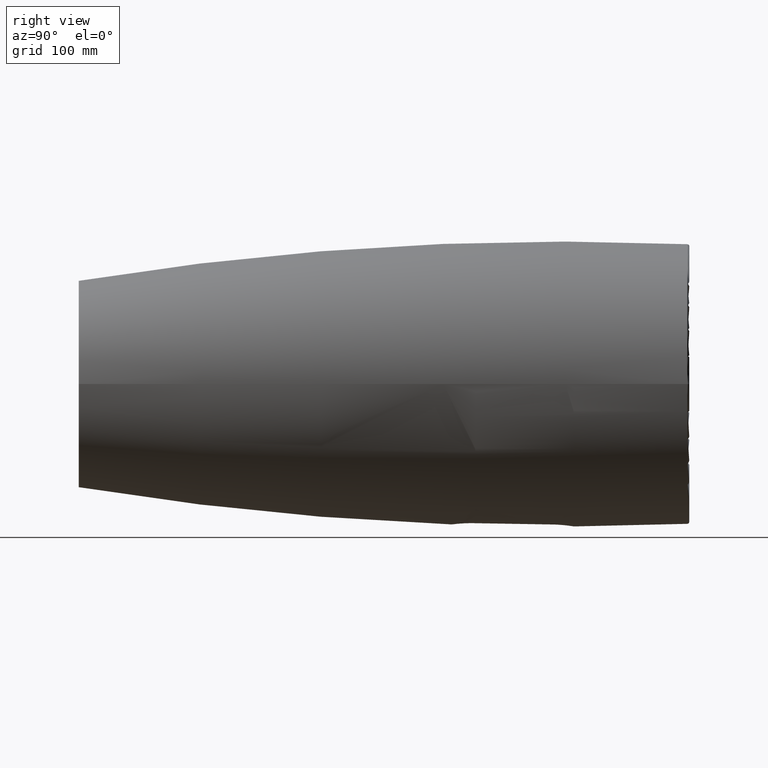
[diagram: clean part render]
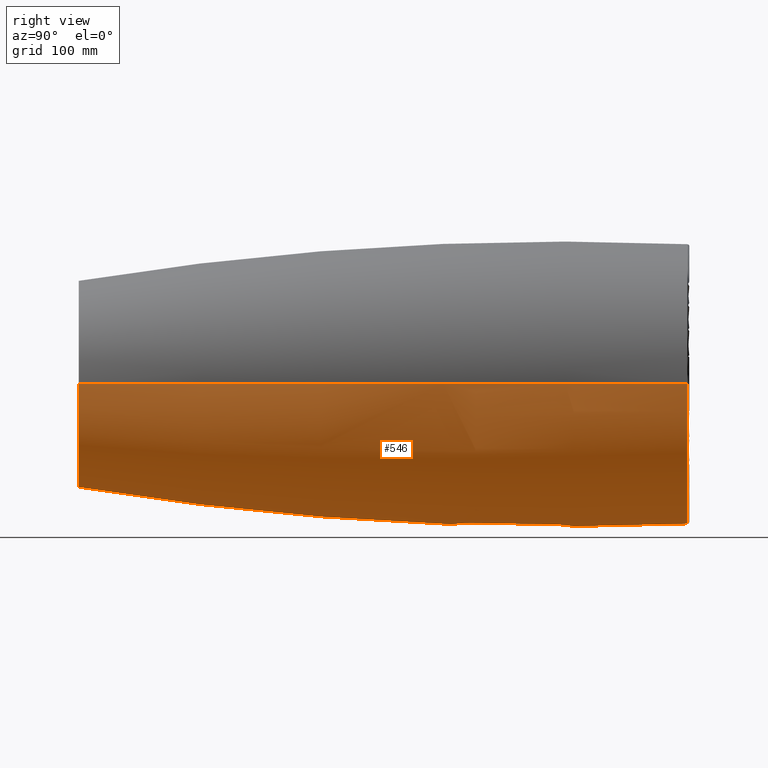
[diagram: same view with one face highlighted and labeled with its STEP entity id]
A machine part, right view. The second image highlights one B-rep face of the part: STEP entity #546.
In plain terms, the highlighted toroidal blend (fillet) surface has major radius 4200.2 mm and minor (blend) radius 4410.2 mm.
Its self-contained STEP definition (entity closure, byte-faithful):
#5 = CARTESIAN_POINT ( 'NONE',  ( -9.068492214503715232, 501.1179024859706601, -206.8704703654524053 ) ) ;
#14 = CARTESIAN_POINT ( 'NONE',  ( -33.82636332218643815, 654.0608404361877319, -207.2505446115492020 ) ) ;
#15 = CARTESIAN_POINT ( 'NONE',  ( 17.50513880578944281, 504.6866228409696760, -206.4457192061990725 ) ) ;
#18 = DIRECTION ( 'NONE',  ( 0.000000000000000000, -0.000000000000000000, -1.000000000000000000 ) ) ;
#21 = CARTESIAN_POINT ( 'NONE',  ( 23.13249471735168328, 508.6355023025968194, -206.0374008160337667 ) ) ;
#23 = CARTESIAN_POINT ( 'NONE',  ( 35.00000000000001421, 645.0000000000000000, -207.0287420584877225 ) ) ;
#26 = CARTESIAN_POINT ( 'NONE',  ( -7.411499894298145819, 679.2111319546037294, -209.8371401805706853 ) ) ;
#27 = CARTESIAN_POINT ( 'NONE',  ( 4.581674952057138483, 500.2249268317227120, -206.9858564886104659 ) ) ;
#39 = CARTESIAN_POINT ( 'NONE',  ( 33.82780353425916076, 525.9445019892123128, -205.1241690423084947 ) ) ;
#42 = EDGE_CURVE ( 'NONE', #287, #400, #499, .T. ) ;
#49 = CARTESIAN_POINT ( 'NONE',  ( 30.30159954123420007, 662.5537128875573671, -207.8031701084568965 ) ) ;
#51 = AXIS2_PLACEMENT_3D ( 'NONE', #267, #563, #261 ) ;
#52 = B_SPLINE_CURVE_WITH_KNOTS ( 'NONE', 3,
 ( #334, #960, #247, #411 ),
 .UNSPECIFIED., .F., .F.,
 ( 4, 4 ),
 ( 0.4357071529583723679, 0.5459115682155204485 ),
 .UNSPECIFIED. ) ;
#59 = CARTESIAN_POINT ( 'NONE',  ( 26.36561549396621018, 668.1336782908838359, -208.3410777724477612 ) ) ;
#61 = CARTESIAN_POINT ( 'NONE',  ( 31.11600750922302439, 661.0350871344687675, -207.6820070019978459 ) ) ;
#64 = CARTESIAN_POINT ( 'NONE',  ( -34.77139922197351751, 530.9646799197255405, -205.1204607162013360 ) ) ;
#70 = CARTESIAN_POINT ( 'NONE',  ( 8.880048061353697261E-14, -49.99999999999993605, 0.000000000000000000 ) ) ;
#84 = EDGE_CURVE ( 'NONE', #622, #682, #838, .T. ) ;
#97 = CARTESIAN_POINT ( 'NONE',  ( -33.14435331607531765, 656.2598890147164639, -207.3639790470734852 ) ) ;
#99 = AXIS2_PLACEMENT_3D ( 'NONE', #409, #191, #959 ) ;
#104 = CARTESIAN_POINT ( 'NONE',  ( -18.98951431697487280, 674.4062757330138993, -209.1232870153775139 ) ) ;
#110 = CARTESIAN_POINT ( 'NONE',  ( 12.35844977212526707, 502.2346759313891766, -206.7312647818859546 ) ) ;
#113 = CARTESIAN_POINT ( 'NONE',  ( 31.45074259986675003, 519.4721872709633317, -205.2968301615894688 ) ) ;
#133 = CARTESIAN_POINT ( 'NONE',  ( 34.94266056010005883, 647.3127221291526894, -207.0471497939622907 ) ) ;
#135 = TOROIDAL_SURFACE ( 'NONE', #51, -4200.202065928870979, 4410.202065928870979 ) ;
#139 = ORIENTED_EDGE ( 'NONE', *, *, #42, .F. ) ;
#140 = CARTESIAN_POINT ( 'NONE',  ( 4.563052901036033226, 679.7060502240622100, -209.9164739181522066 ) ) ;
#142 = CARTESIAN_POINT ( 'NONE',  ( -23.90437165564723543, 509.4283305542919038, -205.9708236304986428 ) ) ;
#144 = CARTESIAN_POINT ( 'NONE',  ( 24.32717501564976459, 670.1698351749778340, -208.5793540859521045 ) ) ;
#145 = CARTESIAN_POINT ( 'NONE',  ( -33.86824845854840760, 525.8794165442877784, -205.1161085064845224 ) ) ;
#154 = CARTESIAN_POINT ( 'NONE',  ( -31.37769123256364878, 519.4831288756500953, -205.3061493508864430 ) ) ;
#181 = CARTESIAN_POINT ( 'NONE',  ( -25.55477332640803922, 668.9426723293047417, -208.4358006988637726 ) ) ;
#190 = CARTESIAN_POINT ( 'NONE',  ( 34.77293530299782987, 530.4118563842274625, -205.1044746086818691 ) ) ;
#191 = DIRECTION ( 'NONE',  ( -1.246832498358330099E-16, 1.000000000000000000, -0.000000000000000000 ) ) ;
#195 = CARTESIAN_POINT ( 'NONE',  ( -32.54767448507710270, 657.8832259865564538, -207.4604079199373814 ) ) ;
#199 = CARTESIAN_POINT ( 'NONE',  ( -34.77235219159226176, 649.5928340172955586, -207.0839169727051683 ) ) ;
#213 = CARTESIAN_POINT ( 'NONE',  ( 23.05875907110197787, 671.3367148944543032, -208.7211447172008434 ) ) ;
#214 = EDGE_CURVE ( 'NONE', #685, #229, #625, .T. ) ;
#217 = CARTESIAN_POINT ( 'NONE',  ( 15.48888797049421662, 676.4071784271624210, -209.4075910753267351 ) ) ;
#224 = AXIS2_PLACEMENT_3D ( 'NONE', #808, #18, #569 ) ;
#225 = CARTESIAN_POINT ( 'NONE',  ( 35.00000000000001421, 645.0000000000000000, -207.0287420584877225 ) ) ;
#228 = CARTESIAN_POINT ( 'NONE',  ( -15.48112938779456549, 503.5890020191228018, -206.5697980876690281 ) ) ;
#229 = VERTEX_POINT ( 'NONE', #705 ) ;
#232 = CARTESIAN_POINT ( 'NONE',  ( -29.71279817365344655, 516.4676383999830023, -205.4549099774115746 ) ) ;
#233 = VERTEX_POINT ( 'NONE', #633 ) ;
#247 = CARTESIAN_POINT ( 'NONE',  ( -34.99999999999999289, 608.3420925411219287, -206.8836723306156387 ) ) ;
#255 = VERTEX_POINT ( 'NONE', #399 ) ;
#256 = CARTESIAN_POINT ( 'NONE',  ( -18.48414213500663905, 505.2572036305296024, -206.3824329531208832 ) ) ;
#258 = CARTESIAN_POINT ( 'NONE',  ( 35.00000000000001421, 535.0000000000198952, -205.2015341794556775 ) ) ;
#260 = CARTESIAN_POINT ( 'NONE',  ( 32.75659716190886428, 522.6574411757225107, -205.1935340704987993 ) ) ;
#261 = DIRECTION ( 'NONE',  ( -1.000000000000000000, -1.246832498358330099E-16, 0.000000000000000000 ) ) ;
#265 = CARTESIAN_POINT ( 'NONE',  ( -9.649313009111097017, 678.6484622188372668, -209.7482411128738136 ) ) ;
#266 = CARTESIAN_POINT ( 'NONE',  ( 17.00633936961762416, 504.4040619335442557, -206.4772898059973443 ) ) ;
#267 = CARTESIAN_POINT ( 'NONE',  ( 0.000000000000000000, 662.2085823914449065, 0.000000000000000000 ) ) ;
#275 = CIRCLE ( 'NONE', #532, 4410.202065928870979 ) ;
#278 = EDGE_CURVE ( 'NONE', #685, #255, #275, .T. ) ;
#280 = CARTESIAN_POINT ( 'NONE',  ( -17.51441706186404801, 675.3080197621088701, -209.2494298869508782 ) ) ;
#286 = CARTESIAN_POINT ( 'NONE',  ( 1.116442601307414906, 680.0008659523807637, -209.9642540850277896 ) ) ;
#287 = VERTEX_POINT ( 'NONE', #392 ) ;
#298 = CARTESIAN_POINT ( 'NONE',  ( 33.20247413712824880, 656.3069358209147595, -207.3570402392730614 ) ) ;
#301 = CARTESIAN_POINT ( 'NONE',  ( 35.00000000000001421, 645.0000000000000000, -207.0287420584877225 ) ) ;
#303 = CARTESIAN_POINT ( 'NONE',  ( -34.43051272978284061, 528.6859284785352884, -205.1085859392053123 ) ) ;
#308 = CARTESIAN_POINT ( 'NONE',  ( -27.80998669667611267, 513.6271235660969978, -205.6286712927498002 ) ) ;
#311 = CARTESIAN_POINT ( 'NONE',  ( 27.81128375157713606, 666.3710119819133979, -208.1526263189751944 ) ) ;
#312 = CARTESIAN_POINT ( 'NONE',  ( -34.99999999999998579, 533.8434025548161799, -205.1676772154961839 ) ) ;
#319 = CARTESIAN_POINT ( 'NONE',  ( -4200.202065928870979, 662.2085823914443381, -5.143764015811891808E-13 ) ) ;
#334 = CARTESIAN_POINT ( 'NONE',  ( -34.99999999999999289, 534.9999999999998863, -205.2015341794561039 ) ) ;
#338 = CARTESIAN_POINT ( 'NONE',  ( -28.45803992653864611, 665.3830784014968458, -208.0619844343865736 ) ) ;
#339 = CARTESIAN_POINT ( 'NONE',  ( 26.32031550222714600, 511.9009335802114720, -205.7626999606470690 ) ) ;
#343 = CARTESIAN_POINT ( 'NONE',  ( -34.99999999999999289, 645.0000000000000000, -207.0287420584857898 ) ) ;
#349 = EDGE_CURVE ( 'NONE', #229, #233, #557, .T. ) ;
#355 = CARTESIAN_POINT ( 'NONE',  ( -33.32572685709037330, 655.7110387311529394, -207.3340991966451554 ) ) ;
#361 = CARTESIAN_POINT ( 'NONE',  ( -7.977128110006434625, 679.0836912181987373, -209.8168745119660343 ) ) ;
#362 = CARTESIAN_POINT ( 'NONE',  ( 33.32729122760878937, 524.2938221818377542, -205.1537686039686719 ) ) ;
#372 = CARTESIAN_POINT ( 'NONE',  ( 34.42959533624530621, 651.3190823974043724, -207.1448400152146121 ) ) ;
#373 = EDGE_CURVE ( 'NONE', #682, #287, #681, .T. ) ;
#376 = CARTESIAN_POINT ( 'NONE',  ( -1.116966182878525338, 499.9991768729919386, -207.0160586650337393 ) ) ;
#377 = EDGE_LOOP ( 'NONE', ( #868, #427, #988, #139 ) ) ;
#380 = CARTESIAN_POINT ( 'NONE',  ( 34.69927577540746455, 649.6143282724711980, -207.0952215394055997 ) ) ;
#384 = CARTESIAN_POINT ( 'NONE',  ( -2.262882050649794419, 500.0541369588972316, -207.0087673640074684 ) ) ;
#387 = CARTESIAN_POINT ( 'NONE',  ( -33.20422520773753661, 523.6979513114686142, -205.1570942709106760 ) ) ;
#392 = CARTESIAN_POINT ( 'NONE',  ( 35.00000000000001421, 535.0000000000198952, -205.2015341794556775 ) ) ;
#399 = CARTESIAN_POINT ( 'NONE',  ( 206.1215591921067301, 847.1257882539825914, 2.524261076998754550E-14 ) ) ;
#400 = VERTEX_POINT ( 'NONE', #886 ) ;
#408 = CARTESIAN_POINT ( 'NONE',  ( 18.98036586746788501, 505.5878111253295515, -206.3475372324176931 ) ) ;
#409 = CARTESIAN_POINT ( 'NONE',  ( -1.056223962992482816E-13, 847.1257882539825914, 0.000000000000000000 ) ) ;
#411 = CARTESIAN_POINT ( 'NONE',  ( -34.99999999999999289, 645.0000000000000000, -207.0287420584857898 ) ) ;
#417 = EDGE_LOOP ( 'NONE', ( #927, #458, #888, #1006 ) ) ;
#418 = CARTESIAN_POINT ( 'NONE',  ( -18.50088868499756956, 674.7161233134911527, -209.1662436523619419 ) ) ;
#419 = CARTESIAN_POINT ( 'NONE',  ( 7.968266169048556335, 500.9142371739706618, -206.8968767916101399 ) ) ;
#422 = CARTESIAN_POINT ( 'NONE',  ( -15.50266918220437162, 676.4002512048132303, -209.4065777069885144 ) ) ;
#423 = CARTESIAN_POINT ( 'NONE',  ( 28.78713279774086686, 515.0844776916823093, -205.5394386341428685 ) ) ;
#427 = ORIENTED_EDGE ( 'NONE', *, *, #84, .F. ) ;
#428 = CARTESIAN_POINT ( 'NONE',  ( -28.78765074655443712, 664.9147587540780933, -208.0169124256569546 ) ) ;
#449 = CARTESIAN_POINT ( 'NONE',  ( 14.43980305888286431, 676.9031216687808410, -209.4811422045873144 ) ) ;
#453 = CARTESIAN_POINT ( 'NONE',  ( 29.71266226825208889, 663.5325285698753532, -207.8882544134922057 ) ) ;
#457 = CARTESIAN_POINT ( 'NONE',  ( -34.52945654247436380, 529.2512505296739391, -205.1092677871307330 ) ) ;
#458 = ORIENTED_EDGE ( 'NONE', *, *, #214, .T. ) ;
#459 = DIRECTION ( 'NONE',  ( 1.000000000000000000, 0.000000000000000000, 1.224646799147353454E-16 ) ) ;
#481 = CARTESIAN_POINT ( 'NONE',  ( -2.313360101028824722, 679.9982372561416923, -209.9638264988666947 ) ) ;
#486 = CARTESIAN_POINT ( 'NONE',  ( -34.99999999999999289, 645.0000000000000000, -207.0287420584857898 ) ) ;
#488 = EDGE_CURVE ( 'NONE', #400, #622, #52, .T. ) ;
#491 = CARTESIAN_POINT ( 'NONE',  ( 21.37195803694548957, 507.1874543512731179, -206.1789518788916666 ) ) ;
#496 = CARTESIAN_POINT ( 'NONE',  ( -27.77387843481654528, 666.3059052440883079, -208.1536488821281239 ) ) ;
#499 = B_SPLINE_CURVE_WITH_KNOTS ( 'NONE', 3,
 ( #581, #670, #190, #983, #39, #362, #571, #260, #973, #113, #821, #423, #664, #505, #842, #339, #967, #21, #491, #408, #728, #15, #266, #735, #647, #110, #962, #567, #653, #419, #740, #27, #782, #376, #384, #617, #944, #701, #786, #5, #688, #1014, #228, #609, #256, #545, #1001, #723, #872, #142, #775, #771, #308, #232, #692, #934, #154, #958, #536, #387, #145, #303, #457, #562, #64, #1009, #312, #833 ),
 .UNSPECIFIED., .F., .F.,
 ( 4, 2, 2, 2, 2, 2, 2, 2, 2, 2, 2, 2, 2, 2, 2, 2, 2, 2, 2, 2, 2, 2, 2, 2, 2, 2, 2, 2, 2, 2, 2, 2, 2, 4 ),
 ( 1.972296520537245286E-07, 0.006843580116678967852, 0.01026527156019242139, 0.01197611728194930211, 0.01368696300370618457, 0.02053034589073340910, 0.02224119161249028809, 0.02395203733424717055, 0.02737372877776093893, 0.03421711166478846877, 0.03592795738654534082, 0.03763880310830221287, 0.04106049455181610963, 0.04448218599532999945, 0.04619303171708699640, 0.04790387743884399335, 0.05474726032587184932, 0.05816895176938578771, 0.05987979749114274303, 0.06159064321289969834, 0.06843402609992749186, 0.07185571754344144413, 0.07527740898695539640, 0.07869910043046934867, 0.08040994615222644970, 0.08212079187398352298, 0.08896417476101227406, 0.09238586620452665654, 0.09409671192628371594, 0.09580755764804074759, 0.1026509405350683468, 0.1043617862568251564, 0.1060726319785819660, 0.1094943234220956130 ),
 .UNSPECIFIED. ) ;
#504 = CARTESIAN_POINT ( 'NONE',  ( -30.37436785714492515, 662.5391278317497381, -207.7960709087836904 ) ) ;
#505 = CARTESIAN_POINT ( 'NONE',  ( 27.77228396407881661, 513.6920007640582071, -205.6319378437462149 ) ) ;
#514 = EDGE_CURVE ( 'NONE', #255, #233, #636, .T. ) ;
#519 = CARTESIAN_POINT ( 'NONE',  ( 31.87067320420491967, 659.4773101162251123, -207.5668093719345109 ) ) ;
#523 = CARTESIAN_POINT ( 'NONE',  ( 11.25835678154443897, 678.2192375130564415, -209.6797479789172485 ) ) ;
#531 = CARTESIAN_POINT ( 'NONE',  ( 32.10391440060871560, 658.9523070874926134, -207.5304714718946286 ) ) ;
#532 = AXIS2_PLACEMENT_3D ( 'NONE', #319, #700, #459 ) ;
#535 = CARTESIAN_POINT ( 'NONE',  ( 3.988063789416337990, 679.7768480209971358, -209.9279179302147327 ) ) ;
#536 = CARTESIAN_POINT ( 'NONE',  ( -32.10535662380212329, 521.0509989310615993, -205.2446885223162099 ) ) ;
#545 = CARTESIAN_POINT ( 'NONE',  ( -20.37890539296409642, 506.5219793291822157, -206.2490341487877856 ) ) ;
#546 = ADVANCED_FACE ( 'NONE', ( #883, #729 ), #135, .T. ) ;
#550 = DIRECTION ( 'NONE',  ( -1.246832498358330099E-16, 1.000000000000000000, -0.000000000000000000 ) ) ;
#557 = CIRCLE ( 'NONE', #224, 4410.202065928870979 ) ;
#562 = CARTESIAN_POINT ( 'NONE',  ( -34.69985712441136627, 530.3900753654055507, -205.1151959540277971 ) ) ;
#563 = DIRECTION ( 'NONE',  ( -1.246832498358330099E-16, 1.000000000000000000, -0.000000000000000000 ) ) ;
#566 = CARTESIAN_POINT ( 'NONE',  ( -32.75498794567779726, 657.3468223459751698, -207.4271877767070578 ) ) ;
#567 = CARTESIAN_POINT ( 'NONE',  ( 9.640346758621360479, 501.3489691492549696, -206.8415877175599746 ) ) ;
#569 = DIRECTION ( 'NONE',  ( -1.000000000000000000, 0.000000000000000000, 0.000000000000000000 ) ) ;
#570 = CARTESIAN_POINT ( 'NONE',  ( -9.095691663666546134, 678.8023811750075538, -209.7724291962848611 ) ) ;
#571 = CARTESIAN_POINT ( 'NONE',  ( 33.14590936378137798, 523.7446853261974411, -205.1657374618602603 ) ) ;
#580 = CARTESIAN_POINT ( 'NONE',  ( -21.37904988927908079, 672.8069690818994104, -208.9051231881697959 ) ) ;
#581 = CARTESIAN_POINT ( 'NONE',  ( 35.00000000000001421, 535.0000000000198952, -205.2015341794556775 ) ) ;
#602 = CARTESIAN_POINT ( 'NONE',  ( 18.49171891088344211, 674.7380796707371928, -209.1686037686453687 ) ) ;
#607 = CARTESIAN_POINT ( 'NONE',  ( 34.52865214629566282, 650.7536028455236874, -207.1268868279768753 ) ) ;
#609 = CARTESIAN_POINT ( 'NONE',  ( -17.50488726892102065, 504.6702277789847244, -206.4470723695675360 ) ) ;
#612 = CARTESIAN_POINT ( 'NONE',  ( 33.86680069539673354, 654.1260730033751543, -207.2447306420648658 ) ) ;
#617 = CARTESIAN_POINT ( 'NONE',  ( -3.987098461234106939, 500.2230458410155052, -206.9865542927579440 ) ) ;
#622 = VERTEX_POINT ( 'NONE', #486 ) ;
#625 = CIRCLE ( 'NONE', #638, 152.1123985246397581 ) ;
#630 = CARTESIAN_POINT ( 'NONE',  ( 35.00000000000001421, 571.6402702528162081, -206.2741012291020013 ) ) ;
#633 = CARTESIAN_POINT ( 'NONE',  ( -206.1215591921068437, 847.1257882539825914, 0.000000000000000000 ) ) ;
#636 = CIRCLE ( 'NONE', #99, 206.1215591921062753 ) ;
#638 = AXIS2_PLACEMENT_3D ( 'NONE', #70, #550, #720 ) ;
#645 = CARTESIAN_POINT ( 'NONE',  ( -26.32314786298074694, 668.0958018734351072, -208.3411170432074471 ) ) ;
#647 = CARTESIAN_POINT ( 'NONE',  ( 14.46293628789093688, 503.1076621110393035, -206.6263788220259414 ) ) ;
#652 = CARTESIAN_POINT ( 'NONE',  ( -11.29354000309507811, 678.1476840693243275, -209.6701433368469338 ) ) ;
#653 = CARTESIAN_POINT ( 'NONE',  ( 9.086757494373964406, 501.1952173293249189, -206.8610557151176010 ) ) ;
#657 = CARTESIAN_POINT ( 'NONE',  ( -31.44925066254884172, 660.5307003087332305, -207.6338498675220592 ) ) ;
#664 = CARTESIAN_POINT ( 'NONE',  ( 28.45719026152833919, 514.6157190355044122, -205.5695971464277250 ) ) ;
#670 = CARTESIAN_POINT ( 'NONE',  ( 35.00000000000133582, 532.6868322987089641, -205.1338210474391417 ) ) ;
#681 = B_SPLINE_CURVE_WITH_KNOTS ( 'NONE', 3,
 ( #23, #903, #630, #258 ),
 .UNSPECIFIED., .F., .F.,
 ( 4, 4 ),
 ( 0.4347041275900007107, 0.5448342012560848380 ),
 .UNSPECIFIED. ) ;
#682 = VERTEX_POINT ( 'NONE', #225 ) ;
#683 = CARTESIAN_POINT ( 'NONE',  ( 23.90926462441530376, 670.5670879540590477, -208.6269649364846828 ) ) ;
#685 = VERTEX_POINT ( 'NONE', #760 ) ;
#686 = CARTESIAN_POINT ( 'NONE',  ( 31.37661556449357292, 660.5190307174311783, -207.6425954536059635 ) ) ;
#688 = CARTESIAN_POINT ( 'NONE',  ( -11.25099136878093020, 501.7783006286086334, -206.7861614772355381 ) ) ;
#692 = CARTESIAN_POINT ( 'NONE',  ( -30.30212166078786851, 517.4471412586880206, -205.4011971827473246 ) ) ;
#700 = DIRECTION ( 'NONE',  ( -1.224646799147353207E-16, -1.526929428187426516E-32, 1.000000000000000000 ) ) ;
#701 = CARTESIAN_POINT ( 'NONE',  ( -5.698772759026928370, 500.4622727378167610, -206.9552753897516766 ) ) ;
#705 = CARTESIAN_POINT ( 'NONE',  ( -152.1123985246396728, -49.99999999999995737, 0.000000000000000000 ) ) ;
#720 = DIRECTION ( 'NONE',  ( 1.000000000000000000, 1.368506572352135864E-16, 0.000000000000000000 ) ) ;
#723 = CARTESIAN_POINT ( 'NONE',  ( -22.61957854277019564, 508.2851972104859328, -206.0758949440526919 ) ) ;
#728 = CARTESIAN_POINT ( 'NONE',  ( 18.49157373016715056, 505.2780818186749343, -206.3808856257346918 ) ) ;
#729 = FACE_BOUND ( 'NONE', #377, .T. ) ;
#734 = CARTESIAN_POINT ( 'NONE',  ( -27.41829741927250197, 666.7616178402857940, -208.2003716324123843 ) ) ;
#735 = CARTESIAN_POINT ( 'NONE',  ( 15.49345950531604998, 503.5952116351479617, -206.5690814386324234 ) ) ;
#739 = CARTESIAN_POINT ( 'NONE',  ( -12.36754779353515232, 677.7618971490755939, -209.6107020538580912 ) ) ;
#740 = CARTESIAN_POINT ( 'NONE',  ( 7.403243728111116972, 500.7870920045699563, -206.9132197624109892 ) ) ;
#750 = CARTESIAN_POINT ( 'NONE',  ( -17.01560031660642380, 675.5907907341421605, -209.2897552544694406 ) ) ;
#755 = CARTESIAN_POINT ( 'NONE',  ( 17.51264011545318411, 675.3253020348474820, -209.2514260778800690 ) ) ;
#760 = CARTESIAN_POINT ( 'NONE',  ( 152.1123985246398433, -49.99999999999991473, 2.193550348318507100E-14 ) ) ;
#770 = CARTESIAN_POINT ( 'NONE',  ( 22.62534656713756931, 671.7099129910560578, -208.7678098069997077 ) ) ;
#771 = CARTESIAN_POINT ( 'NONE',  ( -26.36299084187735531, 511.8631456126007038, -205.7613597547364463 ) ) ;
#773 = CARTESIAN_POINT ( 'NONE',  ( 21.30095421583876814, 672.7951863923625524, -208.9060692441915137 ) ) ;
#775 = CARTESIAN_POINT ( 'NONE',  ( -24.32256088890978418, 509.8256953597063443, -205.9356776983533166 ) ) ;
#782 = CARTESIAN_POINT ( 'NONE',  ( 2.310436763950618477, 500.0016741250813652, -207.0157283688655241 ) ) ;
#786 = CARTESIAN_POINT ( 'NONE',  ( -6.263619031533896653, 500.5602815514551480, -206.9425271447975376 ) ) ;
#805 = CARTESIAN_POINT ( 'NONE',  ( -34.10402408320490508, 652.9509868345896848, -207.2026678668726447 ) ) ;
#808 = CARTESIAN_POINT ( 'NONE',  ( 4200.202065928870979, 662.2085823914454750, 0.000000000000000000 ) ) ;
#811 = CARTESIAN_POINT ( 'NONE',  ( 2.263033155935742613, 679.9458713611653593, -209.9552870661948418 ) ) ;
#821 = CARTESIAN_POINT ( 'NONE',  ( 30.37531496446331403, 517.4622425248957143, -205.3944161884030279 ) ) ;
#826 = CARTESIAN_POINT ( 'NONE',  ( -14.47211266807035557, 676.8881811672396225, -209.4789208002172529 ) ) ;
#833 = CARTESIAN_POINT ( 'NONE',  ( -34.99999999999999289, 534.9999999999998863, -205.2015341794561039 ) ) ;
#838 = B_SPLINE_CURVE_WITH_KNOTS ( 'NONE', 3,
 ( #343, #912, #199, #805, #14, #355, #97, #566, #195, #657, #504, #428, #338, #496, #734, #645, #181, #915, #580, #104, #418, #280, #750, #422, #826, #739, #652, #265, #570, #361, #26, #982, #481, #286, #811, #535, #140, #1007, #937, #861, #523, #449, #217, #755, #602, #921, #773, #770, #213, #683, #144, #59, #311, #453, #49, #61, #686, #519, #531, #298, #612, #372, #607, #380, #846, #133, #1003, #301 ),
 .UNSPECIFIED., .F., .F.,
 ( 4, 2, 2, 2, 2, 2, 2, 2, 2, 2, 2, 2, 2, 2, 2, 2, 2, 2, 2, 2, 2, 2, 2, 2, 2, 2, 2, 2, 2, 2, 2, 2, 2, 4 ),
 ( 1.971369481176360121E-07, 0.006849387360882564467, 0.01027398247284995111, 0.01198628002883349135, 0.01369857758481702811, 0.02054776780875147701, 0.02226006536473516817, 0.02397236292071885586, 0.02739695803268622776, 0.03424614825662072870, 0.03595844581260434353, 0.03767074336858795836, 0.04109533848055520883, 0.04451993359252245930, 0.04623223114850613658, 0.04794452870448982079, 0.05479371892842452296, 0.05821831404039189140, 0.05993061159637556173, 0.06164290915235925289, 0.06849209937629389955, 0.07191669448826124023, 0.07534128960022855315, 0.07876588471219587995, 0.08047818226817944620, 0.08219047982416299858, 0.08903967004809794361, 0.09246426516006525653, 0.09417656271604905871, 0.09588886027203287477, 0.1027380504959677782, 0.1044503480519515942, 0.1061626456079353825, 0.1095872407199033338 ),
 .UNSPECIFIED. ) ;
#842 = CARTESIAN_POINT ( 'NONE',  ( 27.41630444604599859, 513.2358616085458607, -205.6642107471635654 ) ) ;
#846 = CARTESIAN_POINT ( 'NONE',  ( 34.77093103077575620, 649.0394192552023469, -207.0814908621561301 ) ) ;
#861 = CARTESIAN_POINT ( 'NONE',  ( 9.074789752528559461, 678.8805574509941607, -209.7843482029363145 ) ) ;
#868 = ORIENTED_EDGE ( 'NONE', *, *, #373, .F. ) ;
#872 = CARTESIAN_POINT ( 'NONE',  ( -23.05327116363314133, 508.6584747755968010, -206.0408987054510419 ) ) ;
#883 = FACE_OUTER_BOUND ( 'NONE', #417, .T. ) ;
#886 = CARTESIAN_POINT ( 'NONE',  ( -34.99999999999999289, 534.9999999999998863, -205.2015341794561039 ) ) ;
#888 = ORIENTED_EDGE ( 'NONE', *, *, #349, .T. ) ;
#903 = CARTESIAN_POINT ( 'NONE',  ( 35.00000000000001421, 608.3069162691119800, -206.8835331243022893 ) ) ;
#912 = CARTESIAN_POINT ( 'NONE',  ( -34.99999999999999289, 647.3162195572389237, -207.0379082483800630 ) ) ;
#915 = CARTESIAN_POINT ( 'NONE',  ( -23.13800260008905596, 671.3595301135751470, -208.7184719012147411 ) ) ;
#921 = CARTESIAN_POINT ( 'NONE',  ( 20.38587722463515206, 673.4730233829203598, -208.9959274146287385 ) ) ;
#927 = ORIENTED_EDGE ( 'NONE', *, *, #278, .F. ) ;
#934 = CARTESIAN_POINT ( 'NONE',  ( -31.11696580523720002, 518.9667596581319913, -205.3289158031450086 ) ) ;
#937 = CARTESIAN_POINT ( 'NONE',  ( 6.267334212318973030, 679.4390515369003651, -209.8735353928301492 ) ) ;
#944 = CARTESIAN_POINT ( 'NONE',  ( -4.561209134833759116, 500.2937183405613268, -206.9772806227034607 ) ) ;
#958 = CARTESIAN_POINT ( 'NONE',  ( -31.87201979031422638, 520.5256381466537050, -205.2640256771656482 ) ) ;
#959 = DIRECTION ( 'NONE',  ( -1.000000000000000000, 0.000000000000000000, 0.000000000000000000 ) ) ;
#960 = CARTESIAN_POINT ( 'NONE',  ( -34.99999999999999289, 571.6754358341014495, -206.2751306277260142 ) ) ;
#962 = CARTESIAN_POINT ( 'NONE',  ( 11.28448705415146591, 501.8492382636285924, -206.7788564779444869 ) ) ;
#967 = CARTESIAN_POINT ( 'NONE',  ( 25.55131251413399340, 511.0535975253854986, -205.8306759590641946 ) ) ;
#973 = CARTESIAN_POINT ( 'NONE',  ( 32.54928703574972815, 522.1208385519934154, -205.2093114895866677 ) ) ;
#982 = CARTESIAN_POINT ( 'NONE',  ( -4.586695604341825216, 679.7745928546846699, -209.9271117505867039 ) ) ;
#983 = CARTESIAN_POINT ( 'NONE',  ( 34.10527311031432163, 527.0544119835450374, -205.1127099810959180 ) ) ;
#988 = ORIENTED_EDGE ( 'NONE', *, *, #488, .F. ) ;
#1001 = CARTESIAN_POINT ( 'NONE',  ( -21.29441155013297760, 507.1997819635471956, -206.1802707161912167 ) ) ;
#1003 = CARTESIAN_POINT ( 'NONE',  ( 35.00000000000001421, 646.1581088224992300, -207.0333251496494427 ) ) ;
#1006 = ORIENTED_EDGE ( 'NONE', *, *, #514, .F. ) ;
#1007 = CARTESIAN_POINT ( 'NONE',  ( 5.701908605511532002, 679.5372206783808906, -209.8892937725531169 ) ) ;
#1009 = CARTESIAN_POINT ( 'NONE',  ( -34.94280962054914852, 532.6899991691416290, -205.1432305145202406 ) ) ;
#1014 = CARTESIAN_POINT ( 'NONE',  ( -14.43207589676142355, 503.0933907428885163, -206.6280618893872543 ) ) ;